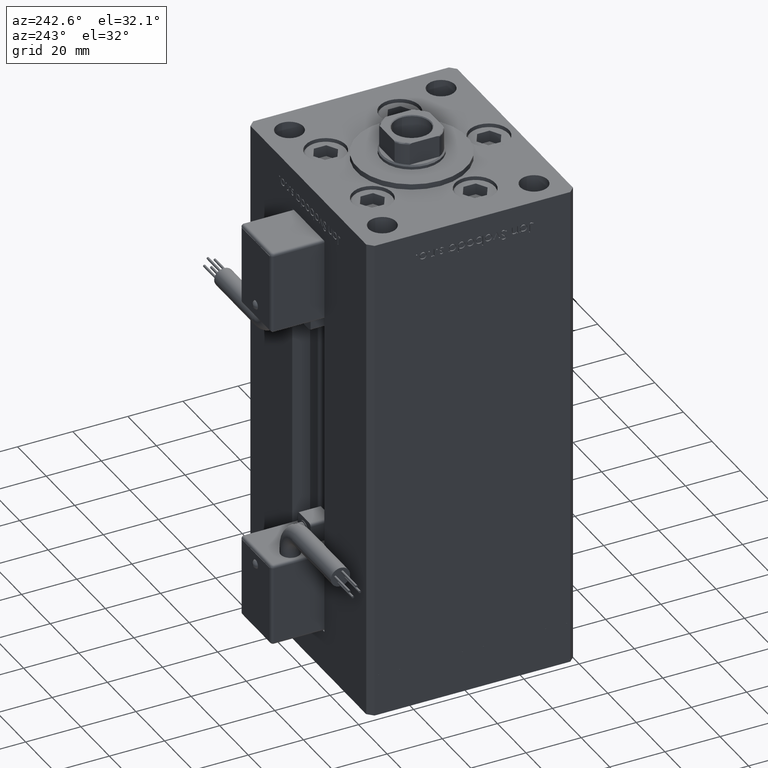
[diagram: clean part render]
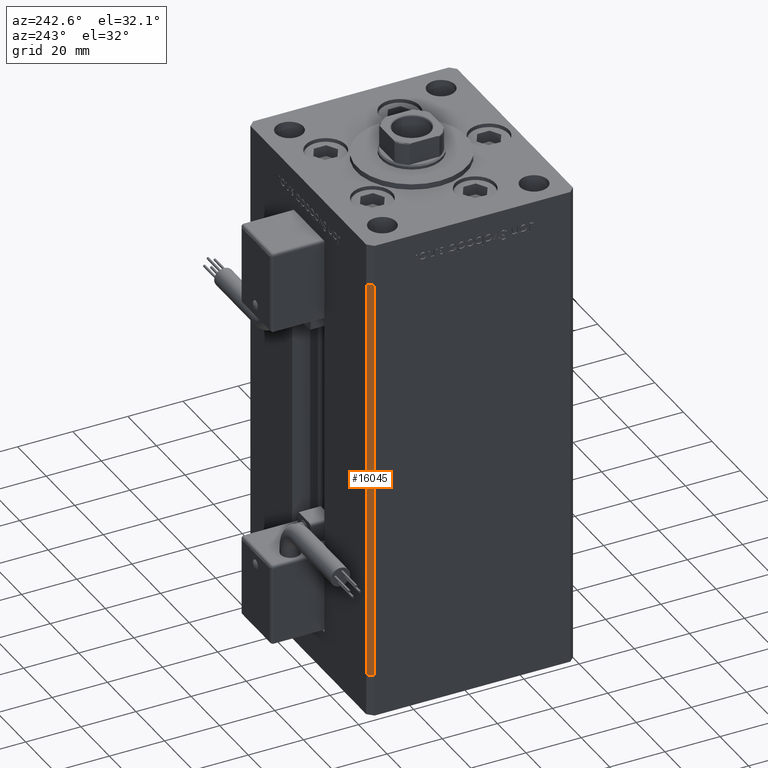
[diagram: same view with one face highlighted and labeled with its STEP entity id]
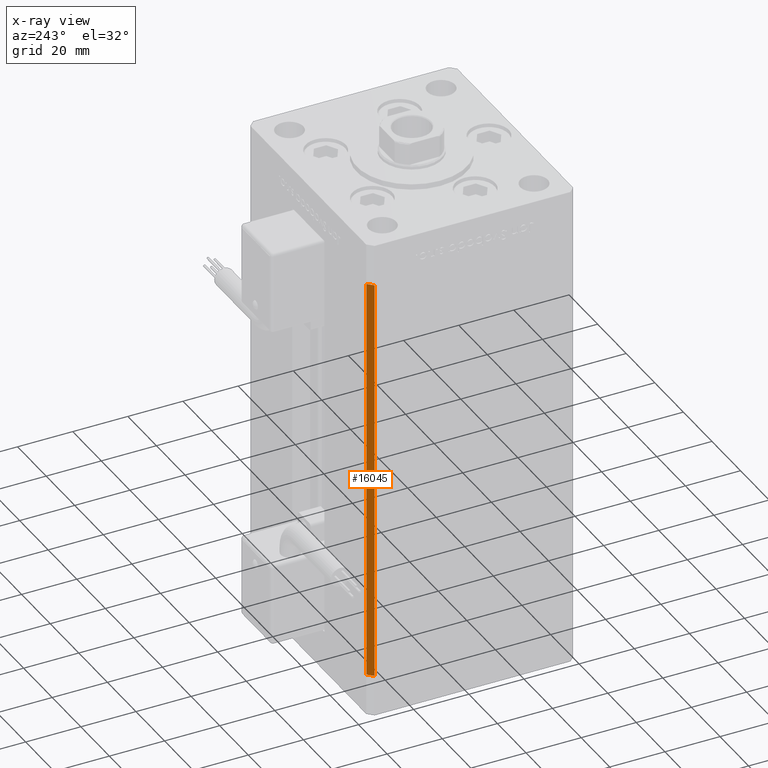
[diagram: x-ray of the same camera — body ghosted, the highlighted face saturated]
A machine part, auxiliary view. The second image highlights one B-rep face of the part: STEP entity #16045.
The next image is the same camera in x-ray: the body ghosted, the highlighted face saturated — about 0% of this face is hidden behind the body in this view.
In plain terms, the highlighted planar face has unit normal (0.7071, -0.7071, 0).
Its self-contained STEP definition (entity closure, byte-faithful):
#841 = LINE ( 'NONE', #42984, #42143 ) ;
#2991 = DIRECTION ( 'NONE',  ( -0.7071067811865500152, -0.7071067811865451302, 0.000000000000000000 ) ) ;
#3855 = DIRECTION ( 'NONE',  ( 0.7071067811865500152, 0.7071067811865451302, 0.000000000000000000 ) ) ;
#6648 = VECTOR ( 'NONE', #25277, 1000.000000000000000 ) ;
#8014 = LINE ( 'NONE', #37020, #52565 ) ;
#8031 = EDGE_CURVE ( 'NONE', #22243, #24748, #841, .T. ) ;
#8268 = LINE ( 'NONE', #42573, #6648 ) ;
#11054 = ORIENTED_EDGE ( 'NONE', *, *, #13880, .T. ) ;
#12041 = VECTOR ( 'NONE', #31266, 1000.000000000000000 ) ;
#12796 = PLANE ( 'NONE',  #27132 ) ;
#13880 = EDGE_CURVE ( 'NONE', #31555, #22243, #27353, .T. ) ;
#14249 = CARTESIAN_POINT ( 'NONE',  ( -40.50000000000000000, 37.50000000000000711, 148.5000000000000000 ) ) ;
#16045 = ADVANCED_FACE ( 'NONE', ( #25065 ), #12796, .F. ) ;
#17385 = EDGE_CURVE ( 'NONE', #46893, #24748, #8268, .T. ) ;
#22243 = VERTEX_POINT ( 'NONE', #45349 ) ;
#24748 = VERTEX_POINT ( 'NONE', #46738 ) ;
#25065 = FACE_OUTER_BOUND ( 'NONE', #55232, .T. ) ;
#25277 = DIRECTION ( 'NONE',  ( -0.000000000000000000, -0.000000000000000000, -1.000000000000000000 ) ) ;
#25320 = ORIENTED_EDGE ( 'NONE', *, *, #8031, .T. ) ;
#27025 = ORIENTED_EDGE ( 'NONE', *, *, #17385, .F. ) ;
#27132 = AXIS2_PLACEMENT_3D ( 'NONE', #42086, #55223, #3855 ) ;
#27353 = LINE ( 'NONE', #14249, #12041 ) ;
#29878 = DIRECTION ( 'NONE',  ( -0.7071067811865500152, -0.7071067811865451302, 0.000000000000000000 ) ) ;
#31266 = DIRECTION ( 'NONE',  ( -0.000000000000000000, -0.000000000000000000, -1.000000000000000000 ) ) ;
#31555 = VERTEX_POINT ( 'NONE', #35105 ) ;
#32757 = CARTESIAN_POINT ( 'NONE',  ( -42.50000000000000711, 35.50000000000001421, 148.5000000000000000 ) ) ;
#35105 = CARTESIAN_POINT ( 'NONE',  ( -40.50000000000000000, 37.50000000000000711, 148.5000000000000000 ) ) ;
#37020 = CARTESIAN_POINT ( 'NONE',  ( -40.50000000000000000, 37.50000000000000711, 148.5000000000000000 ) ) ;
#37279 = ORIENTED_EDGE ( 'NONE', *, *, #44899, .F. ) ;
#42086 = CARTESIAN_POINT ( 'NONE',  ( -40.50000000000000000, 37.50000000000000711, 148.5000000000000000 ) ) ;
#42143 = VECTOR ( 'NONE', #29878, 1000.000000000000114 ) ;
#42573 = CARTESIAN_POINT ( 'NONE',  ( -42.50000000000000711, 35.50000000000001421, 148.5000000000000000 ) ) ;
#42984 = CARTESIAN_POINT ( 'NONE',  ( -40.50000000000000000, 37.50000000000000711, 0.000000000000000000 ) ) ;
#44899 = EDGE_CURVE ( 'NONE', #31555, #46893, #8014, .T. ) ;
#45349 = CARTESIAN_POINT ( 'NONE',  ( -40.50000000000000000, 37.50000000000000711, 0.000000000000000000 ) ) ;
#46738 = CARTESIAN_POINT ( 'NONE',  ( -42.50000000000000711, 35.50000000000001421, 0.000000000000000000 ) ) ;
#46893 = VERTEX_POINT ( 'NONE', #32757 ) ;
#52565 = VECTOR ( 'NONE', #2991, 1000.000000000000114 ) ;
#55223 = DIRECTION ( 'NONE',  ( 0.7071067811865451302, -0.7071067811865500152, 0.000000000000000000 ) ) ;
#55232 = EDGE_LOOP ( 'NONE', ( #25320, #27025, #37279, #11054 ) ) ;